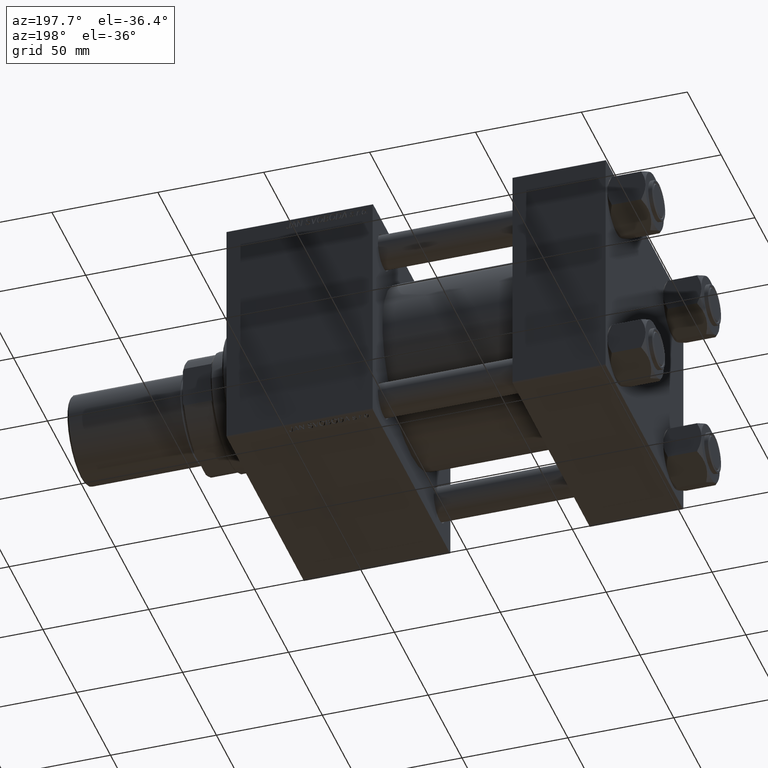
[diagram: clean part render]
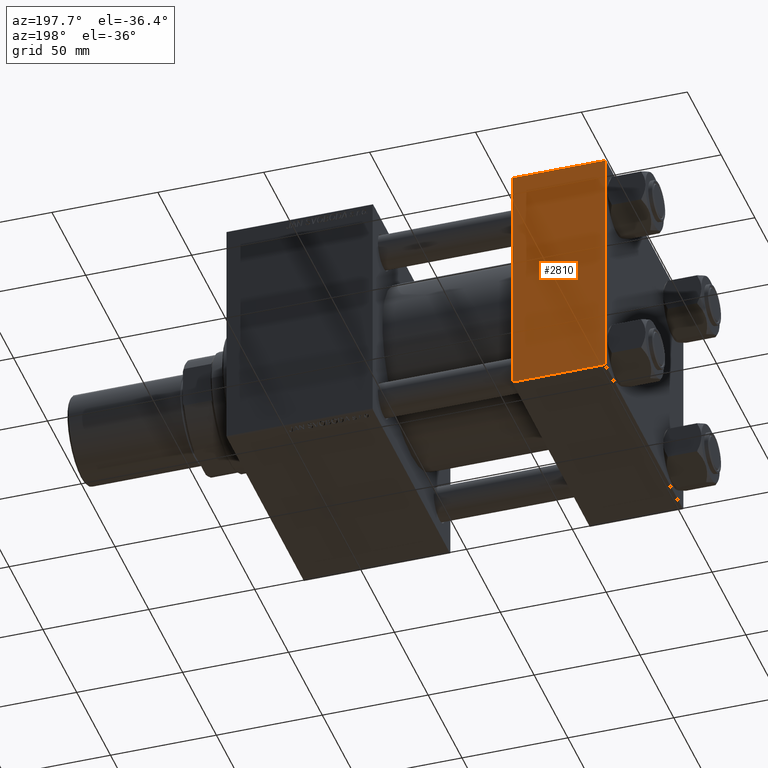
[diagram: same view with one face highlighted and labeled with its STEP entity id]
A machine part, auxiliary view. The second image highlights one B-rep face of the part: STEP entity #2810.
In plain terms, the highlighted planar face has unit normal (0, 1, 0).
Its self-contained STEP definition (entity closure, byte-faithful):
#808 = EDGE_CURVE ( 'NONE', #18339, #7875, #24176, .T. ) ;
#1676 = ORIENTED_EDGE ( 'NONE', *, *, #808, .T. ) ;
#1743 = ORIENTED_EDGE ( 'NONE', *, *, #7922, .T. ) ;
#2810 = ADVANCED_FACE ( 'NONE', ( #9047 ), #44046, .T. ) ;
#3459 = LINE ( 'NONE', #7610, #43568 ) ;
#4738 = CARTESIAN_POINT ( 'NONE',  ( 44.00000000000000000, 57.49999999999999289, -57.00000000000000711 ) ) ;
#6899 = LINE ( 'NONE', #30744, #18101 ) ;
#7610 = CARTESIAN_POINT ( 'NONE',  ( 44.00000000000000000, 57.49999999999999289, 57.00000000000003553 ) ) ;
#7875 = VERTEX_POINT ( 'NONE', #22636 ) ;
#7922 = EDGE_CURVE ( 'NONE', #39191, #39610, #3459, .T. ) ;
#9047 = FACE_OUTER_BOUND ( 'NONE', #48242, .T. ) ;
#10534 = DIRECTION ( 'NONE',  ( 0.000000000000000000, 0.000000000000000000, -1.000000000000000000 ) ) ;
#11022 = CARTESIAN_POINT ( 'NONE',  ( 44.00000000000000000, 57.49999999999999289, 57.50000000000000711 ) ) ;
#11804 = DIRECTION ( 'NONE',  ( 0.000000000000000000, 0.000000000000000000, -1.000000000000000000 ) ) ;
#12176 = DIRECTION ( 'NONE',  ( 0.000000000000000000, -0.000000000000000000, 1.000000000000000000 ) ) ;
#18101 = VECTOR ( 'NONE', #10534, 1000.000000000000000 ) ;
#18339 = VERTEX_POINT ( 'NONE', #36308 ) ;
#20713 = DIRECTION ( 'NONE',  ( -0.000000000000000000, 1.000000000000000000, 0.000000000000000000 ) ) ;
#21146 = ORIENTED_EDGE ( 'NONE', *, *, #23214, .T. ) ;
#21177 = AXIS2_PLACEMENT_3D ( 'NONE', #35762, #20713, #12176 ) ;
#22636 = CARTESIAN_POINT ( 'NONE',  ( 0.000000000000000000, 57.49999999999999289, -57.00000000000000711 ) ) ;
#23214 = EDGE_CURVE ( 'NONE', #39610, #18339, #50925, .T. ) ;
#24176 = LINE ( 'NONE', #4738, #39340 ) ;
#24593 = CARTESIAN_POINT ( 'NONE',  ( 44.00000000000000000, 57.49999999999999289, 57.00000000000003553 ) ) ;
#27916 = ORIENTED_EDGE ( 'NONE', *, *, #48240, .F. ) ;
#30744 = CARTESIAN_POINT ( 'NONE',  ( 0.000000000000000000, 57.49999999999999289, 57.50000000000000711 ) ) ;
#32205 = DIRECTION ( 'NONE',  ( -1.000000000000000000, 0.000000000000000000, 0.000000000000000000 ) ) ;
#35762 = CARTESIAN_POINT ( 'NONE',  ( 44.00000000000000000, 57.49999999999999289, 57.50000000000000711 ) ) ;
#36308 = CARTESIAN_POINT ( 'NONE',  ( 44.00000000000000000, 57.49999999999999289, -57.00000000000000711 ) ) ;
#39191 = VERTEX_POINT ( 'NONE', #47477 ) ;
#39340 = VECTOR ( 'NONE', #32205, 1000.000000000000000 ) ;
#39610 = VERTEX_POINT ( 'NONE', #24593 ) ;
#43568 = VECTOR ( 'NONE', #46744, 1000.000000000000000 ) ;
#44046 = PLANE ( 'NONE',  #21177 ) ;
#46744 = DIRECTION ( 'NONE',  ( 1.000000000000000000, 0.000000000000000000, 0.000000000000000000 ) ) ;
#47477 = CARTESIAN_POINT ( 'NONE',  ( 0.000000000000000000, 57.49999999999999289, 57.00000000000003553 ) ) ;
#48240 = EDGE_CURVE ( 'NONE', #39191, #7875, #6899, .T. ) ;
#48242 = EDGE_LOOP ( 'NONE', ( #21146, #1676, #27916, #1743 ) ) ;
#48553 = VECTOR ( 'NONE', #11804, 1000.000000000000000 ) ;
#50925 = LINE ( 'NONE', #11022, #48553 ) ;